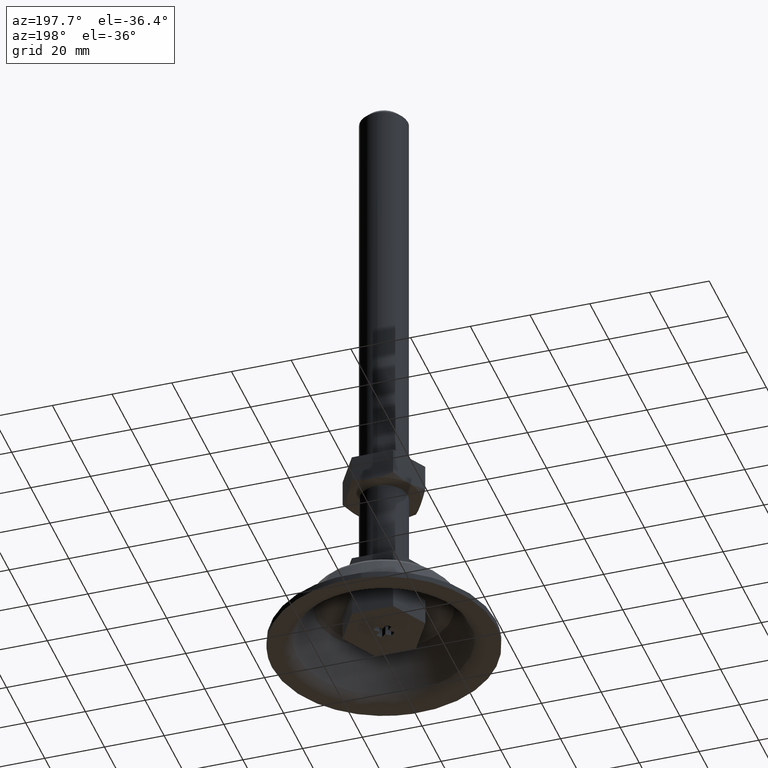
[diagram: clean part render]
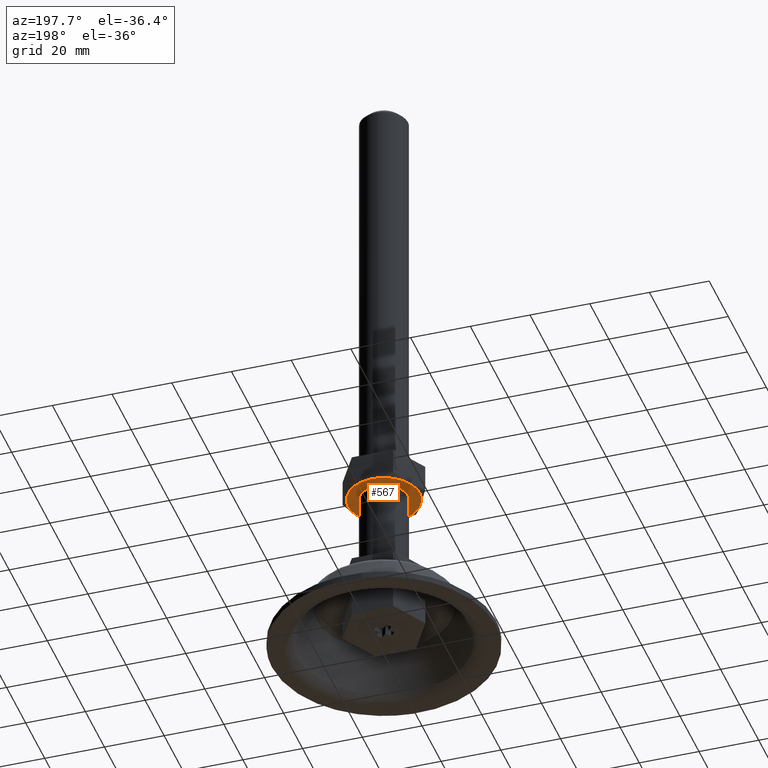
[diagram: same view with one face highlighted and labeled with its STEP entity id]
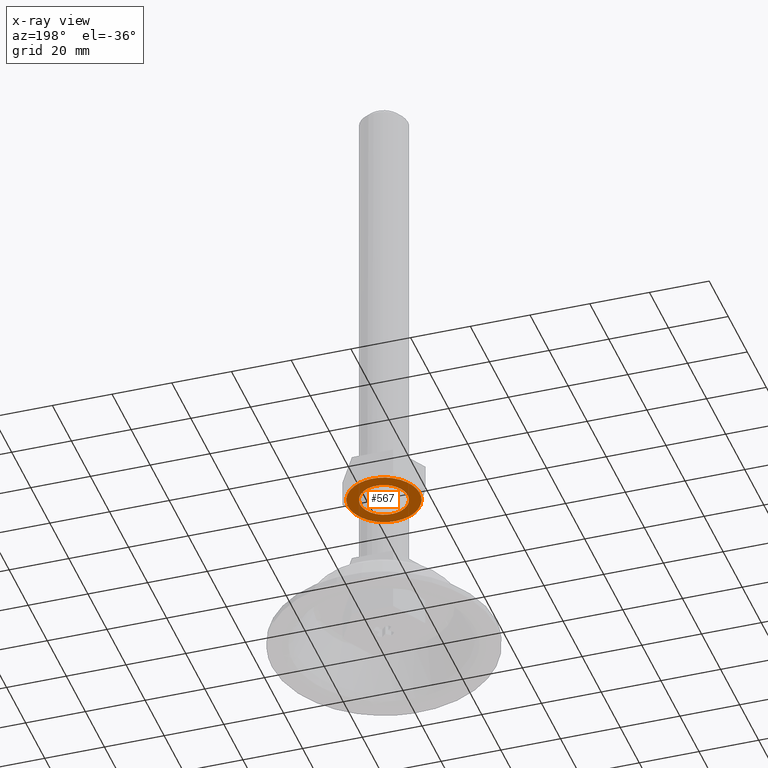
[diagram: x-ray of the same camera — body ghosted, the highlighted face saturated]
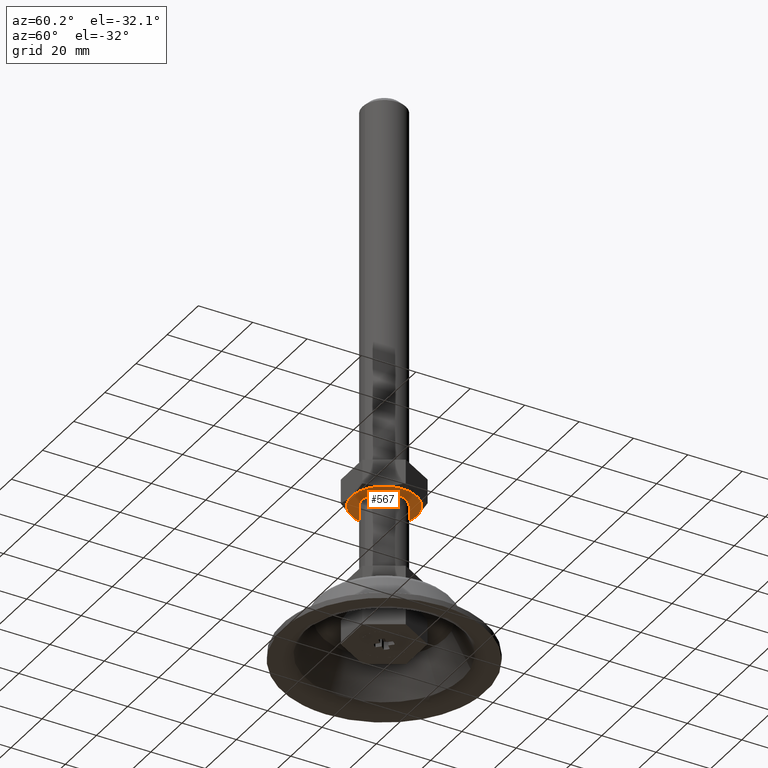
[diagram: same view with one face highlighted and labeled with its STEP entity id]
A machine part, auxiliary view. The second image highlights one B-rep face of the part: STEP entity #567.
The next image is the same camera in x-ray: the body ghosted, the highlighted face saturated — about 0% of this face is hidden behind the body in this view.
A second angle (auxiliary view) of the same face is appended — the face is thin or edge-on in the first view.
In plain terms, the highlighted face is a freeform B-spline surface patch.
Its self-contained STEP definition (entity closure, byte-faithful):
#62=CARTESIAN_POINT('',(-10.115294292669860,-6.444153173572678,58.000000000010658));
#63=VERTEX_POINT('',#62);
#64=CARTESIAN_POINT('',(11.993593654586739,0.0,58.0));
#65=VERTEX_POINT('',#64);
#66=CARTESIAN_POINT('',(-10.115294292669859,-6.444153173572678,58.000000000010658));
#67=CARTESIAN_POINT('',(-6.579910797637136,-11.993593654586743,58.000000000000007));
#68=CARTESIAN_POINT('',(0.0,-11.993593654586739,58.0));
#69=CARTESIAN_POINT('',(11.993593654586743,-11.993593654586743,58.0));
#70=CARTESIAN_POINT('',(11.993593654586739,0.0,58.0));
#78=(BOUNDED_CURVE()B_SPLINE_CURVE(2,(#66,#67,#68,#69,#70),.UNSPECIFIED.,.F.,.U.)B_SPLINE_CURVE_WITH_KNOTS((3,2,3),(0.091950076722637,0.250000000000000,0.500000000000000),.UNSPECIFIED.)CURVE()GEOMETRIC_REPRESENTATION_ITEM()RATIONAL_B_SPLINE_CURVE((0.863791038906103,0.814832996952295,1.0,0.707106781186548,1.0))REPRESENTATION_ITEM(''));
#79=EDGE_CURVE('',#63,#65,#78,.T.);
#81=CARTESIAN_POINT('',(10.115294292669860,6.444153173572678,58.000000000010672));
#82=VERTEX_POINT('',#81);
#83=CARTESIAN_POINT('',(11.993593654586739,0.0,58.0));
#84=CARTESIAN_POINT('',(11.993593654586739,3.495813755991577,58.0));
#85=CARTESIAN_POINT('',(10.115294292669857,6.444153173572678,58.000000000010672));
#93=(BOUNDED_CURVE()B_SPLINE_CURVE(2,(#83,#84,#85),.UNSPECIFIED.,.F.,.U.)B_SPLINE_CURVE_WITH_KNOTS((3,3),(0.500000000000000,0.591950076722636),.UNSPECIFIED.)CURVE()GEOMETRIC_REPRESENTATION_ITEM()RATIONAL_B_SPLINE_CURVE((1.0,0.892273784234253,0.863791038906104))REPRESENTATION_ITEM(''));
#94=EDGE_CURVE('',#65,#82,#93,.T.);
#204=CARTESIAN_POINT('',(-11.993593654586739,0.0,58.0));
#205=VERTEX_POINT('',#204);
#206=CARTESIAN_POINT('',(-11.993593654586739,0.0,58.0));
#207=CARTESIAN_POINT('',(-11.993593654586745,-3.495813755991621,57.999999999999993));
#208=CARTESIAN_POINT('',(-10.115294292669859,-6.444153173572678,58.000000000010658));
#216=(BOUNDED_CURVE()B_SPLINE_CURVE(2,(#206,#207,#208),.UNSPECIFIED.,.F.,.U.)B_SPLINE_CURVE_WITH_KNOTS((3,3),(0.0,0.091950076722637),.UNSPECIFIED.)CURVE()GEOMETRIC_REPRESENTATION_ITEM()RATIONAL_B_SPLINE_CURVE((1.0,0.892273784234252,0.863791038906103))REPRESENTATION_ITEM(''));
#217=EDGE_CURVE('',#205,#63,#216,.T.);
#294=CARTESIAN_POINT('',(10.115294292669859,6.444153173572678,58.000000000010658));
#295=CARTESIAN_POINT('',(6.579910797637136,11.993593654586743,58.000000000000007));
#296=CARTESIAN_POINT('',(0.0,11.993593654586739,58.0));
#297=CARTESIAN_POINT('',(-11.993593654586743,11.993593654586743,58.0));
#298=CARTESIAN_POINT('',(-11.993593654586739,0.0,58.0));
#306=(BOUNDED_CURVE()B_SPLINE_CURVE(2,(#294,#295,#296,#297,#298),.UNSPECIFIED.,.F.,.U.)B_SPLINE_CURVE_WITH_KNOTS((3,2,3),(0.591950076722637,0.750000000000000,1.0),.UNSPECIFIED.)CURVE()GEOMETRIC_REPRESENTATION_ITEM()RATIONAL_B_SPLINE_CURVE((0.863791038906103,0.814832996952295,1.0,0.707106781186548,1.0))REPRESENTATION_ITEM(''));
#307=EDGE_CURVE('',#82,#205,#306,.T.);
#347=CARTESIAN_POINT('',(-0.627672766268568,-7.975338669829936,58.0));
#348=VERTEX_POINT('',#347);
#354=CARTESIAN_POINT('',(-8.0,0.0,58.0));
#355=VERTEX_POINT('',#354);
#356=CARTESIAN_POINT('',(-8.0,0.0,58.0));
#357=CARTESIAN_POINT('',(-8.0,-7.395123932436357,57.999999999999993));
#358=CARTESIAN_POINT('',(-0.627672766268568,-7.975338669829936,58.000000000000007));
#366=(BOUNDED_CURVE()B_SPLINE_CURVE(2,(#356,#357,#358),.UNSPECIFIED.,.F.,.U.)B_SPLINE_CURVE_WITH_KNOTS((3,3),(0.0,0.236331300613602),.UNSPECIFIED.)CURVE()GEOMETRIC_REPRESENTATION_ITEM()RATIONAL_B_SPLINE_CURVE((1.0,0.723120658627649,0.969723356131821))REPRESENTATION_ITEM(''));
#367=EDGE_CURVE('',#355,#348,#366,.T.);
#369=CARTESIAN_POINT('',(0.627672766268571,7.975338669829936,58.0));
#370=VERTEX_POINT('',#369);
#371=CARTESIAN_POINT('',(0.627672766268571,7.975338669829936,58.0));
#372=CARTESIAN_POINT('',(0.314320856509235,8.0,57.999999999999993));
#373=CARTESIAN_POINT('',(0.0,8.0,58.0));
#374=CARTESIAN_POINT('',(-8.0,8.0,58.0));
#375=CARTESIAN_POINT('',(-8.0,0.0,58.0));
#383=(BOUNDED_CURVE()B_SPLINE_CURVE(2,(#371,#372,#373,#374,#375),.UNSPECIFIED.,.F.,.U.)B_SPLINE_CURVE_WITH_KNOTS((3,2,3),(0.736331300613602,0.750000000000000,1.0),.UNSPECIFIED.)CURVE()GEOMETRIC_REPRESENTATION_ITEM()RATIONAL_B_SPLINE_CURVE((0.969723356131820,0.983986122558898,1.0,0.707106781186548,1.0))REPRESENTATION_ITEM(''));
#384=EDGE_CURVE('',#370,#355,#383,.T.);
#460=CARTESIAN_POINT('',(8.0,0.0,58.0));
#461=VERTEX_POINT('',#460);
#462=CARTESIAN_POINT('',(8.0,0.0,58.0));
#463=CARTESIAN_POINT('',(8.0,7.395123932436316,58.000000000000007));
#464=CARTESIAN_POINT('',(0.627672766268571,7.975338669829936,58.0));
#472=(BOUNDED_CURVE()B_SPLINE_CURVE(2,(#462,#463,#464),.UNSPECIFIED.,.F.,.U.)B_SPLINE_CURVE_WITH_KNOTS((3,3),(0.500000000000000,0.736331300613601),.UNSPECIFIED.)CURVE()GEOMETRIC_REPRESENTATION_ITEM()RATIONAL_B_SPLINE_CURVE((1.0,0.723120658627651,0.969723356131819))REPRESENTATION_ITEM(''));
#473=EDGE_CURVE('',#461,#370,#472,.T.);
#475=CARTESIAN_POINT('',(-0.627672766268568,-7.975338669829936,58.0));
#476=CARTESIAN_POINT('',(-0.314320856509232,-8.000000000000002,58.000000000000007));
#477=CARTESIAN_POINT('',(0.0,-8.0,58.0));
#478=CARTESIAN_POINT('',(8.0,-8.0,58.0));
#479=CARTESIAN_POINT('',(8.0,0.0,58.0));
#487=(BOUNDED_CURVE()B_SPLINE_CURVE(2,(#475,#476,#477,#478,#479),.UNSPECIFIED.,.F.,.U.)B_SPLINE_CURVE_WITH_KNOTS((3,2,3),(0.236331300613602,0.250000000000000,0.500000000000000),.UNSPECIFIED.)CURVE()GEOMETRIC_REPRESENTATION_ITEM()RATIONAL_B_SPLINE_CURVE((0.969723356131820,0.983986122558898,1.0,0.707106781186548,1.0))REPRESENTATION_ITEM(''));
#488=EDGE_CURVE('',#348,#461,#487,.T.);
#550=CARTESIAN_POINT('',(-13.191753078139950,13.187237483787159,58.0));
#551=CARTESIAN_POINT('',(13.191752434753450,13.187237483787159,58.0));
#552=CARTESIAN_POINT('',(-13.191753078139950,-13.187236625938491,58.0));
#553=CARTESIAN_POINT('',(13.191752434753450,-13.187236625938491,58.0));
#554=B_SPLINE_SURFACE_WITH_KNOTS('',1,1,((#550,#552),(#551,#553)),.UNSPECIFIED.,.F.,.F.,.U.,(2,2),(2,2),(0.0,26.383505512893390),(0.0,26.374474109725650),.UNSPECIFIED.);
#555=ORIENTED_EDGE('',*,*,#307,.F.);
#556=ORIENTED_EDGE('',*,*,#94,.F.);
#557=ORIENTED_EDGE('',*,*,#79,.F.);
#558=ORIENTED_EDGE('',*,*,#217,.F.);
#559=EDGE_LOOP('',(#555,#556,#557,#558));
#560=FACE_OUTER_BOUND('',#559,.T.);
#561=ORIENTED_EDGE('',*,*,#473,.T.);
#562=ORIENTED_EDGE('',*,*,#384,.T.);
#563=ORIENTED_EDGE('',*,*,#367,.T.);
#564=ORIENTED_EDGE('',*,*,#488,.T.);
#565=EDGE_LOOP('',(#561,#562,#563,#564));
#566=FACE_BOUND('',#565,.T.);
#567=ADVANCED_FACE('',(#560,#566),#554,.T.);